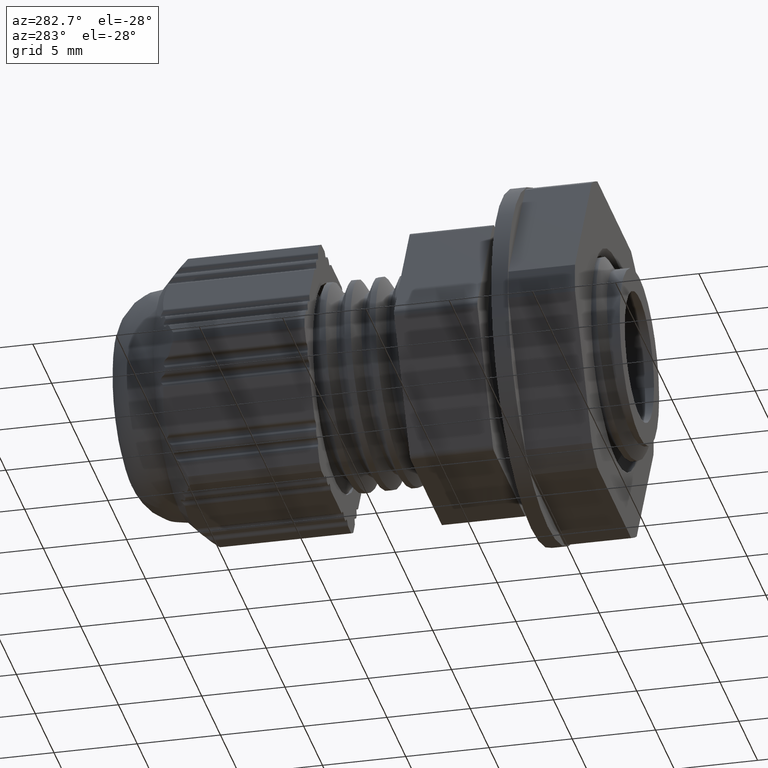
[diagram: clean part render]
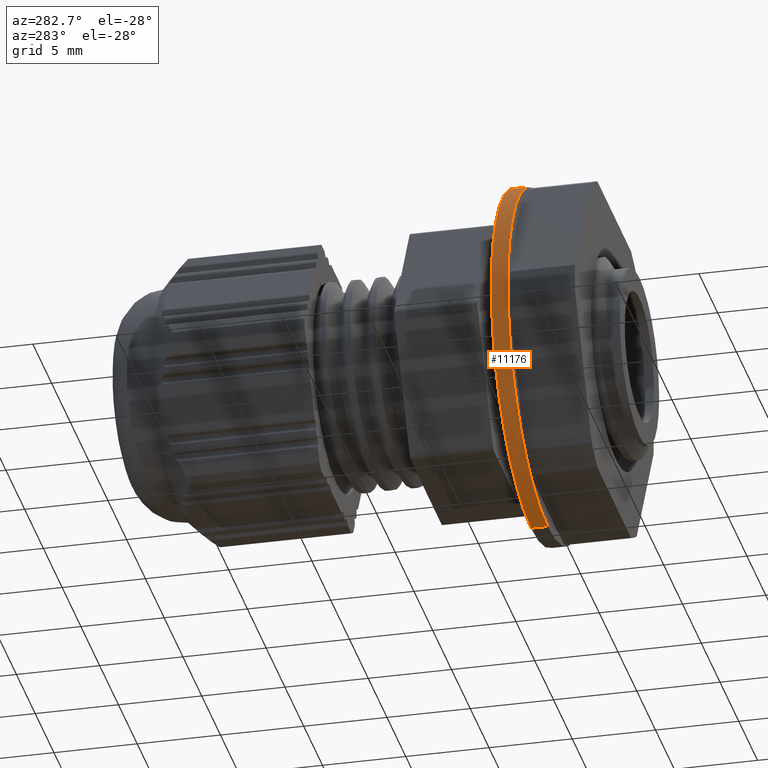
[diagram: same view with one face highlighted and labeled with its STEP entity id]
A machine part, auxiliary view. The second image highlights one B-rep face of the part: STEP entity #11176.
In plain terms, the highlighted cylindrical surface (partial cylindrical patch) has radius 10.6 mm, axis along (0, 1, 0).
Its self-contained STEP definition (entity closure, byte-faithful):
#725 = AXIS2_PLACEMENT_3D ( 'NONE', #6290, #6302, #6308 ) ;
#1208 = LINE ( 'NONE', #1275, #14321 ) ;
#1266 = DIRECTION ( 'NONE',  ( 0.0000000000000000000, 1.000000000000000000, 0.0000000000000000000 ) ) ;
#1275 = CARTESIAN_POINT ( 'NONE',  ( 3.469446951953614200E-015, -9.156178942014106400, 10.60000000000000000 ) ) ;
#2006 = EDGE_CURVE ( 'NONE', #13274, #13218, #13577, .T. ) ;
#2066 = EDGE_CURVE ( 'NONE', #13279, #13219, #1208, .T. ) ;
#2982 = CARTESIAN_POINT ( 'NONE',  ( 3.469446951953614200E-015, -8.156178942014108200, 0.0000000000000000000 ) ) ;
#2990 = DIRECTION ( 'NONE',  ( 0.0000000000000000000, 0.0000000000000000000, 1.000000000000000000 ) ) ;
#2995 = DIRECTION ( 'NONE',  ( 0.0000000000000000000, 1.000000000000000000, 0.0000000000000000000 ) ) ;
#3417 = CARTESIAN_POINT ( 'NONE',  ( 3.469446951953614200E-015, -9.156178942014106400, 0.0000000000000000000 ) ) ;
#3421 = DIRECTION ( 'NONE',  ( 0.0000000000000000000, 1.000000000000000000, 0.0000000000000000000 ) ) ;
#3437 = DIRECTION ( 'NONE',  ( 0.0000000000000000000, 0.0000000000000000000, 1.000000000000000000 ) ) ;
#6290 = CARTESIAN_POINT ( 'NONE',  ( 3.469446951953614200E-015, -9.156178942014106400, 0.0000000000000000000 ) ) ;
#6300 = CYLINDRICAL_SURFACE ( 'NONE', #725, 10.60000000000000000 ) ;
#6302 = DIRECTION ( 'NONE',  ( 0.0000000000000000000, 1.000000000000000000, 0.0000000000000000000 ) ) ;
#6308 = DIRECTION ( 'NONE',  ( 0.0000000000000000000, 0.0000000000000000000, 1.000000000000000000 ) ) ;
#6315 = FACE_OUTER_BOUND ( 'NONE', #12230, .T. ) ;
#10303 = CARTESIAN_POINT ( 'NONE',  ( 3.469446951953614200E-015, -8.156178942014108200, 10.60000000000000000 ) ) ;
#10329 = CARTESIAN_POINT ( 'NONE',  ( 4.767572559049808200E-015, -8.156178942014108200, -10.60000000000000000 ) ) ;
#10405 = CARTESIAN_POINT ( 'NONE',  ( 4.767572559049808200E-015, -9.156178942014106400, -10.60000000000000000 ) ) ;
#10408 = CARTESIAN_POINT ( 'NONE',  ( 3.469446951953614200E-015, -9.156178942014106400, 10.60000000000000000 ) ) ;
#10739 = EDGE_CURVE ( 'NONE', #13218, #13219, #13971, .T. ) ;
#10810 = EDGE_CURVE ( 'NONE', #13274, #13279, #13982, .T. ) ;
#11176 = ADVANCED_FACE ( 'NONE', ( #6315 ), #6300, .T. ) ;
#11740 = ORIENTED_EDGE ( 'NONE', *, *, #2006, .F. ) ;
#11750 = ORIENTED_EDGE ( 'NONE', *, *, #2066, .T. ) ;
#11757 = ORIENTED_EDGE ( 'NONE', *, *, #10810, .T. ) ;
#11789 = ORIENTED_EDGE ( 'NONE', *, *, #10739, .F. ) ;
#12230 = EDGE_LOOP ( 'NONE', ( #11740, #11757, #11750, #11789 ) ) ;
#13218 = VERTEX_POINT ( 'NONE', #10329 ) ;
#13219 = VERTEX_POINT ( 'NONE', #10303 ) ;
#13274 = VERTEX_POINT ( 'NONE', #10405 ) ;
#13279 = VERTEX_POINT ( 'NONE', #10408 ) ;
#13562 = CARTESIAN_POINT ( 'NONE',  ( 4.767572559049808200E-015, -9.156178942014106400, -10.60000000000000000 ) ) ;
#13577 = LINE ( 'NONE', #13562, #14281 ) ;
#13581 = DIRECTION ( 'NONE',  ( 0.0000000000000000000, 1.000000000000000000, 0.0000000000000000000 ) ) ;
#13971 = CIRCLE ( 'NONE', #13972, 10.60000000000000000 ) ;
#13972 = AXIS2_PLACEMENT_3D ( 'NONE', #2982, #2995, #2990 ) ;
#13982 = CIRCLE ( 'NONE', #13993, 10.60000000000000000 ) ;
#13993 = AXIS2_PLACEMENT_3D ( 'NONE', #3417, #3421, #3437 ) ;
#14281 = VECTOR ( 'NONE', #13581, 1000.000000000000000 ) ;
#14321 = VECTOR ( 'NONE', #1266, 1000.000000000000000 ) ;